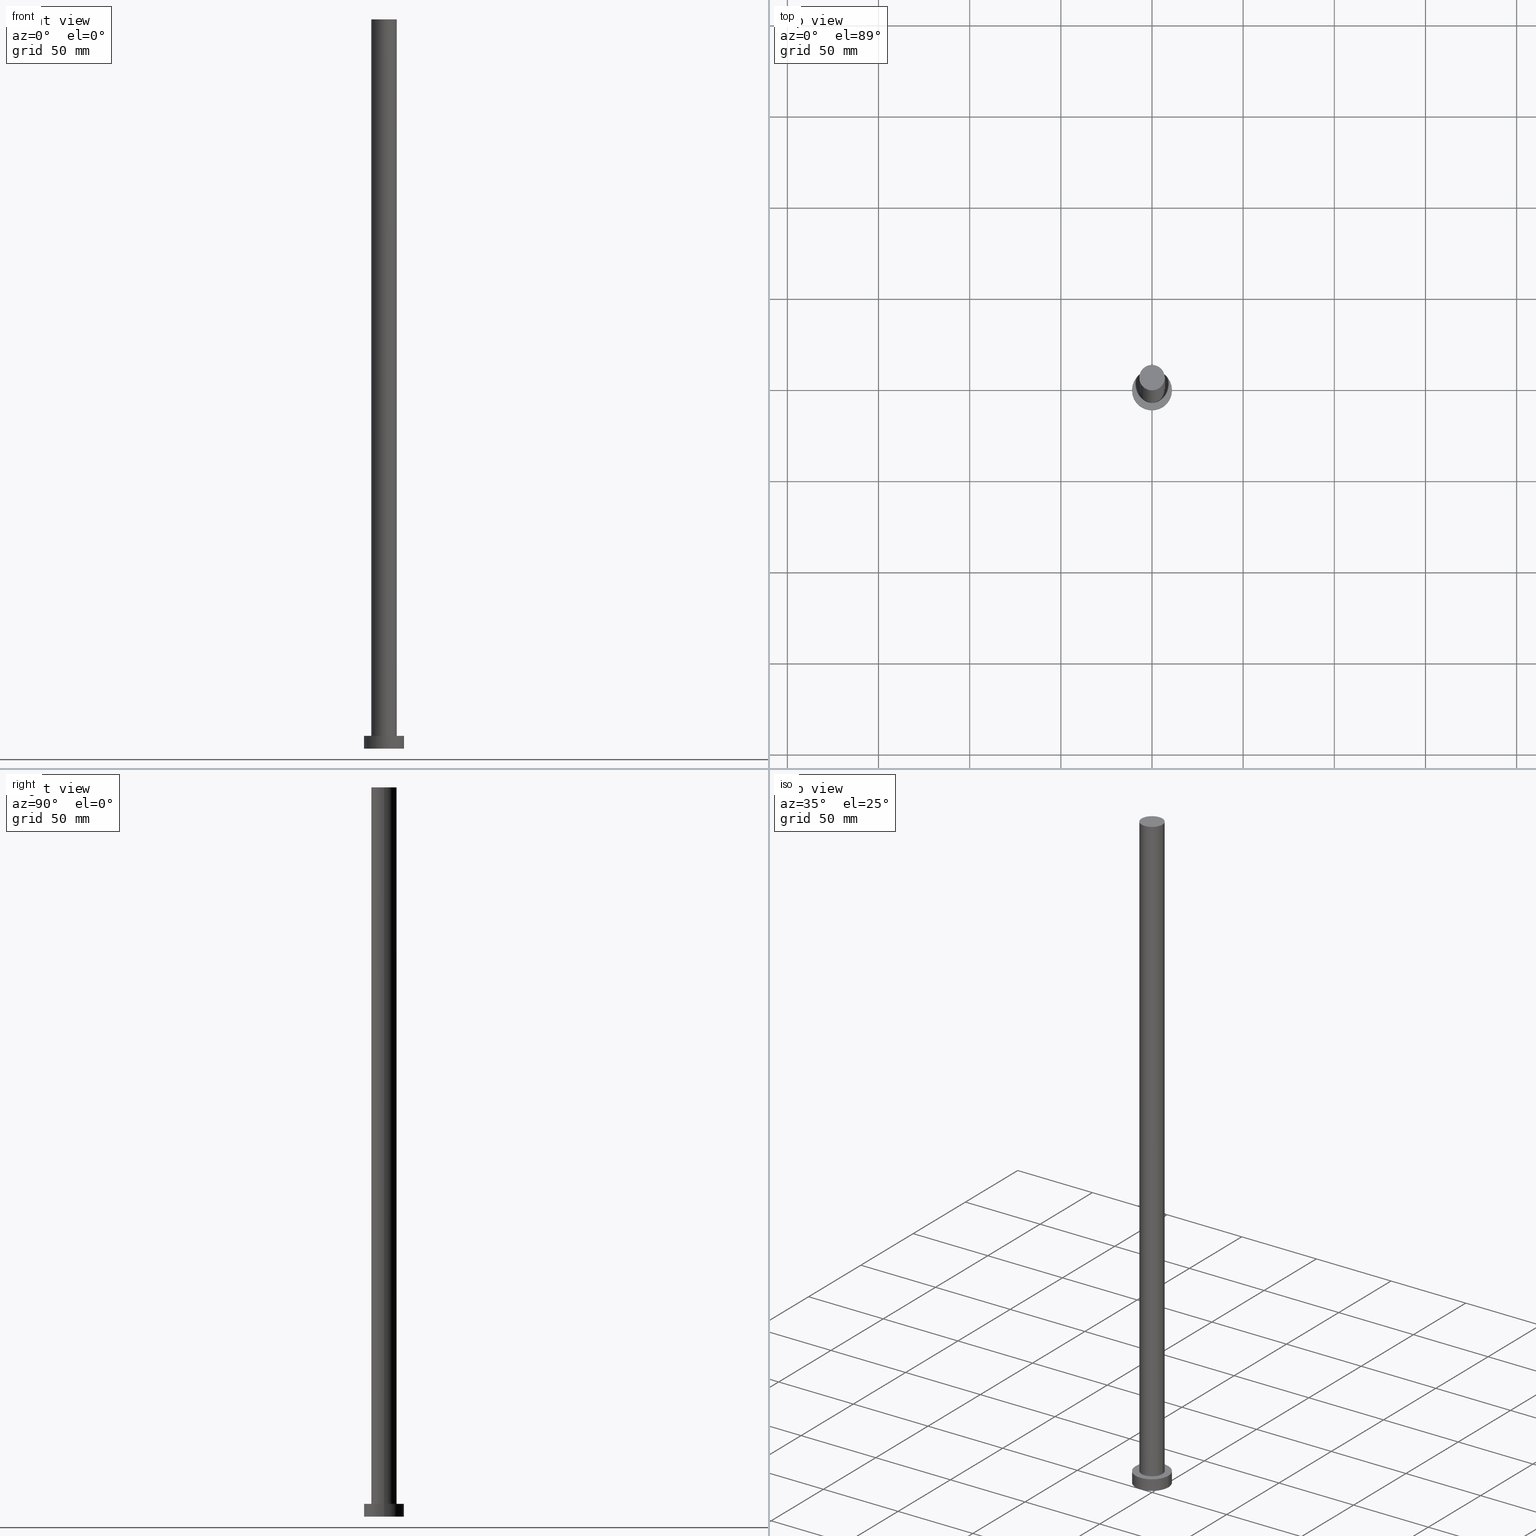
[diagram: canonical four-view strip — front | top / right | iso, engineering-drawing reading convention]
A machine part, canonical four-view strip (front | top / right | iso — engineering-drawing reading convention). The complete STEP part file that produces these views, byte-faithful:
ISO-10303-21;
HEADER;
FILE_DESCRIPTION (( 'STEP AP203' ),
    '1' );
FILE_NAME ('0eed.STEP',
    '2023-02-12T10:47:02',
    ( '' ),
    ( '' ),
    'SwSTEP 2.0',
    'SolidWorks 2019',
    '' );
FILE_SCHEMA (( 'CONFIG_CONTROL_DESIGN' ));
ENDSEC;

DATA;
#1 = CLOSED_SHELL ( 'NONE', ( #58, #105, #55, #234, #199, #146, #26 ) ) ;
#2 = DIRECTION ( 'NONE',  ( 1.000000000000000000, 0.000000000000000000, 0.000000000000000000 ) ) ;
#3 = CARTESIAN_POINT ( 'NONE',  ( -11.00000000000000000, 0.000000000000000000, 0.000000000000000000 ) ) ;
#4 = DATE_AND_TIME ( #47, #211 ) ;
#5 = CIRCLE ( 'NONE', #248, 7.000000000000000000 ) ;
#6 = APPROVAL_DATE_TIME ( #132, #203 ) ;
#7 = PERSON_AND_ORGANIZATION ( #238, #153 ) ;
#8 = VECTOR ( 'NONE', #162, 1000.000000000000000 ) ;
#9 = CC_DESIGN_DATE_AND_TIME_ASSIGNMENT ( #246, #54, ( #143 ) ) ;
#10 =( GEOMETRIC_REPRESENTATION_CONTEXT ( 3 ) GLOBAL_UNCERTAINTY_ASSIGNED_CONTEXT ( ( #134 ) ) GLOBAL_UNIT_ASSIGNED_CONTEXT ( ( #239, #204, #92 ) ) REPRESENTATION_CONTEXT ( 'NONE', 'WORKASPACE' ) );
#11 = ORIENTED_EDGE ( 'NONE', *, *, #77, .T. ) ;
#12 = ORIENTED_EDGE ( 'NONE', *, *, #189, .T. ) ;
#13 = ORIENTED_EDGE ( 'NONE', *, *, #180, .F. ) ;
#14 = EDGE_CURVE ( 'NONE', #97, #37, #17, .T. ) ;
#15 = ORIENTED_EDGE ( 'NONE', *, *, #68, .F. ) ;
#16 = CYLINDRICAL_SURFACE ( 'NONE', #166, 7.000000000000000000 ) ;
#17 = CIRCLE ( 'NONE', #53, 7.000000000000000000 ) ;
#18 = PLANE ( 'NONE',  #36 ) ;
#19 = CARTESIAN_POINT ( 'NONE',  ( 7.000000000000000000, 8.572527594031473190E-16, 400.0000000000000000 ) ) ;
#20 = DIRECTION ( 'NONE',  ( 1.000000000000000000, 0.000000000000000000, -0.000000000000000000 ) ) ;
#21 = LINE ( 'NONE', #144, #62 ) ;
#22 = COORDINATED_UNIVERSAL_TIME_OFFSET ( 1, 0, .AHEAD. ) ;
#23 = APPROVAL ( #217, 'NEUR�EN�' ) ;
#24 = DIRECTION ( 'NONE',  ( 0.000000000000000000, 0.000000000000000000, 1.000000000000000000 ) ) ;
#25 = AXIS2_PLACEMENT_3D ( 'NONE', #83, #159, #233 ) ;
#26 = ADVANCED_FACE ( 'NONE', ( #227 ), #139, .T. ) ;
#27 = CALENDAR_DATE ( 2023, 12, 2 ) ;
#28 = PERSON_AND_ORGANIZATION ( #238, #153 ) ;
#29 = APPROVAL_STATUS ( 'not_yet_approved' ) ;
#30 = APPROVAL_PERSON_ORGANIZATION ( #221, #203, #90 ) ;
#31 = EDGE_LOOP ( 'NONE', ( #172, #33, #12, #194 ) ) ;
#32 = PRODUCT_DEFINITION_SHAPE ( 'NONE', 'NONE',  #108 ) ;
#33 = ORIENTED_EDGE ( 'NONE', *, *, #14, .F. ) ;
#34 = DESIGN_CONTEXT ( 'detailed design', #82, 'design' ) ;
#35 = DIRECTION ( 'NONE',  ( 1.000000000000000000, 0.000000000000000000, -0.000000000000000000 ) ) ;
#36 = AXIS2_PLACEMENT_3D ( 'NONE', #175, #65, #20 ) ;
#37 = VERTEX_POINT ( 'NONE', #106 ) ;
#38 = DIRECTION ( 'NONE',  ( 1.000000000000000000, 0.000000000000000000, 0.000000000000000000 ) ) ;
#39 = EDGE_CURVE ( 'NONE', #122, #209, #129, .T. ) ;
#40 = CARTESIAN_POINT ( 'NONE',  ( 11.00000000000000000, 1.347111479062088405E-15, 7.000000000000000000 ) ) ;
#41 = CIRCLE ( 'NONE', #126, 11.00000000000000000 ) ;
#42 = DIRECTION ( 'NONE',  ( 1.000000000000000000, 0.000000000000000000, 0.000000000000000000 ) ) ;
#43 = DIRECTION ( 'NONE',  ( 0.000000000000000000, 0.000000000000000000, 1.000000000000000000 ) ) ;
#44 = VECTOR ( 'NONE', #124, 1000.000000000000000 ) ;
#45 = FACE_OUTER_BOUND ( 'NONE', #80, .T. ) ;
#46 = APPROVAL_ROLE ( '' ) ;
#47 = CALENDAR_DATE ( 2023, 12, 2 ) ;
#48 = MANIFOLD_SOLID_BREP ( 'P�idat vysunut�m3', #1 ) ;
#49 = PERSON_AND_ORGANIZATION_ROLE ( 'design_supplier' ) ;
#50 = APPROVAL_PERSON_ORGANIZATION ( #237, #23, #46 ) ;
#51 = PRODUCT_RELATED_PRODUCT_CATEGORY ( 'detail', '', ( #71 ) ) ;
#52 = CARTESIAN_POINT ( 'NONE',  ( 0.000000000000000000, 0.000000000000000000, 400.0000000000000000 ) ) ;
#53 = AXIS2_PLACEMENT_3D ( 'NONE', #156, #224, #158 ) ;
#54 = DATE_TIME_ROLE ( 'classification_date' ) ;
#55 = ADVANCED_FACE ( 'NONE', ( #45 ), #130, .T. ) ;
#56 = CIRCLE ( 'NONE', #87, 7.000000000000000000 ) ;
#57 = ORIENTED_EDGE ( 'NONE', *, *, #135, .F. ) ;
#58 = ADVANCED_FACE ( 'NONE', ( #61 ), #16, .T. ) ;
#59 = LOCAL_TIME ( 11, 47, 2.000000000000000000, #168 ) ;
#60 = CARTESIAN_POINT ( 'NONE',  ( -7.000000000000000000, 0.000000000000000000, 7.000000000000000000 ) ) ;
#61 = FACE_OUTER_BOUND ( 'NONE', #74, .T. ) ;
#62 = VECTOR ( 'NONE', #85, 1000.000000000000000 ) ;
#63 = CARTESIAN_POINT ( 'NONE',  ( 0.000000000000000000, 0.000000000000000000, 7.000000000000000000 ) ) ;
#64 = DIRECTION ( 'NONE',  ( 0.000000000000000000, 0.000000000000000000, 1.000000000000000000 ) ) ;
#65 = DIRECTION ( 'NONE',  ( 0.000000000000000000, 0.000000000000000000, 1.000000000000000000 ) ) ;
#66 = CIRCLE ( 'NONE', #190, 11.00000000000000000 ) ;
#67 = CARTESIAN_POINT ( 'NONE',  ( 0.000000000000000000, 0.000000000000000000, 0.000000000000000000 ) ) ;
#68 = EDGE_CURVE ( 'NONE', #122, #100, #66, .T. ) ;
#69 = LOCAL_TIME ( 11, 47, 2.000000000000000000, #206 ) ;
#70 = PERSON_AND_ORGANIZATION ( #238, #153 ) ;
#71 = PRODUCT ( '0eed', '0eed', '', ( #72 ) ) ;
#72 = MECHANICAL_CONTEXT ( 'NONE', #195, 'mechanical' ) ;
#73 = EDGE_CURVE ( 'NONE', #37, #169, #231, .T. ) ;
#74 = EDGE_LOOP ( 'NONE', ( #78, #193, #11, #79 ) ) ;
#75 = ORIENTED_EDGE ( 'NONE', *, *, #245, .T. ) ;
#76 = PERSON_AND_ORGANIZATION ( #238, #153 ) ;
#77 = EDGE_CURVE ( 'NONE', #169, #101, #56, .T. ) ;
#78 = ORIENTED_EDGE ( 'NONE', *, *, #245, .F. ) ;
#79 = ORIENTED_EDGE ( 'NONE', *, *, #189, .F. ) ;
#80 = EDGE_LOOP ( 'NONE', ( #141, #247, #120, #123 ) ) ;
#81 = CIRCLE ( 'NONE', #252, 11.00000000000000000 ) ;
#82 = APPLICATION_CONTEXT ( 'configuration controlled 3d designs of mechanical parts and assemblies' ) ;
#83 = CARTESIAN_POINT ( 'NONE',  ( 0.000000000000000000, 0.000000000000000000, 7.000000000000000000 ) ) ;
#84 = AXIS2_PLACEMENT_3D ( 'NONE', #182, #24, #116 ) ;
#85 = DIRECTION ( 'NONE',  ( -0.000000000000000000, -0.000000000000000000, -1.000000000000000000 ) ) ;
#86 = DIRECTION ( 'NONE',  ( -0.000000000000000000, -0.000000000000000000, -1.000000000000000000 ) ) ;
#87 = AXIS2_PLACEMENT_3D ( 'NONE', #161, #179, #42 ) ;
#88 = FACE_BOUND ( 'NONE', #171, .T. ) ;
#89 = LINE ( 'NONE', #128, #8 ) ;
#90 = APPROVAL_ROLE ( '' ) ;
#91 = VECTOR ( 'NONE', #107, 1000.000000000000000 ) ;
#92 =( NAMED_UNIT ( * ) SI_UNIT ( $, .STERADIAN. ) SOLID_ANGLE_UNIT ( ) );
#93 = ADVANCED_BREP_SHAPE_REPRESENTATION ( '0eed', ( #48, #119 ), #10 ) ;
#94 = APPROVAL_DATE_TIME ( #95, #23 ) ;
#95 = DATE_AND_TIME ( #27, #69 ) ;
#96 = EDGE_CURVE ( 'NONE', #209, #137, #81, .T. ) ;
#97 = VERTEX_POINT ( 'NONE', #232 ) ;
#98 = CC_DESIGN_DATE_AND_TIME_ASSIGNMENT ( #4, #164, ( #108 ) ) ;
#99 = DATE_AND_TIME ( #121, #59 ) ;
#100 = VERTEX_POINT ( 'NONE', #177 ) ;
#101 = VERTEX_POINT ( 'NONE', #60 ) ;
#102 = LOCAL_TIME ( 11, 47, 2.000000000000000000, #185 ) ;
#103 = ORIENTED_EDGE ( 'NONE', *, *, #174, .F. ) ;
#104 = DIRECTION ( 'NONE',  ( 0.000000000000000000, 0.000000000000000000, 1.000000000000000000 ) ) ;
#105 = ADVANCED_FACE ( 'NONE', ( #173 ), #149, .T. ) ;
#106 = CARTESIAN_POINT ( 'NONE',  ( 7.000000000000000000, 8.572527594031473190E-16, 400.0000000000000000 ) ) ;
#107 = DIRECTION ( 'NONE',  ( -0.000000000000000000, -0.000000000000000000, -1.000000000000000000 ) ) ;
#108 = PRODUCT_DEFINITION ( 'NEZN�M�', '', #112, #34 ) ;
#109 = CARTESIAN_POINT ( 'NONE',  ( 11.00000000000000000, 1.347111479062088405E-15, 0.000000000000000000 ) ) ;
#110 = DIRECTION ( 'NONE',  ( 1.000000000000000000, 0.000000000000000000, 0.000000000000000000 ) ) ;
#111 = PERSON_AND_ORGANIZATION_ROLE ( 'creator' ) ;
#112 = PRODUCT_DEFINITION_FORMATION_WITH_SPECIFIED_SOURCE ( 'LIBOVOLN�', '', #71, .NOT_KNOWN. ) ;
#113 = DIRECTION ( 'NONE',  ( 1.000000000000000000, 0.000000000000000000, 0.000000000000000000 ) ) ;
#114 = PLANE ( 'NONE',  #84 ) ;
#115 = AXIS2_PLACEMENT_3D ( 'NONE', #216, #212, #150 ) ;
#116 = DIRECTION ( 'NONE',  ( 1.000000000000000000, 0.000000000000000000, -0.000000000000000000 ) ) ;
#117 = PERSON_AND_ORGANIZATION_ROLE ( 'classification_officer' ) ;
#118 = EDGE_LOOP ( 'NONE', ( #157, #226 ) ) ;
#119 = AXIS2_PLACEMENT_3D ( 'NONE', #67, #181, #113 ) ;
#120 = ORIENTED_EDGE ( 'NONE', *, *, #135, .T. ) ;
#121 = CALENDAR_DATE ( 2023, 12, 2 ) ;
#122 = VERTEX_POINT ( 'NONE', #196 ) ;
#123 = ORIENTED_EDGE ( 'NONE', *, *, #180, .T. ) ;
#124 = DIRECTION ( 'NONE',  ( -0.000000000000000000, -0.000000000000000000, -1.000000000000000000 ) ) ;
#125 = DIRECTION ( 'NONE',  ( 1.000000000000000000, 0.000000000000000000, 0.000000000000000000 ) ) ;
#126 = AXIS2_PLACEMENT_3D ( 'NONE', #178, #254, #2 ) ;
#127 = CC_DESIGN_APPROVAL ( #218, ( #143 ) ) ;
#128 = CARTESIAN_POINT ( 'NONE',  ( -7.000000000000000000, 0.000000000000000000, 400.0000000000000000 ) ) ;
#129 = LINE ( 'NONE', #40, #44 ) ;
#130 = CYLINDRICAL_SURFACE ( 'NONE', #133, 11.00000000000000000 ) ;
#131 = CARTESIAN_POINT ( 'NONE',  ( 0.000000000000000000, 0.000000000000000000, 400.0000000000000000 ) ) ;
#132 = DATE_AND_TIME ( #220, #176 ) ;
#133 = AXIS2_PLACEMENT_3D ( 'NONE', #63, #213, #200 ) ;
#134 = UNCERTAINTY_MEASURE_WITH_UNIT (LENGTH_MEASURE( 1.000000000000000082E-05 ), #239, 'distance_accuracy_value', 'NONE');
#135 = EDGE_CURVE ( 'NONE', #100, #137, #21, .T. ) ;
#136 = APPROVAL_ROLE ( '' ) ;
#137 = VERTEX_POINT ( 'NONE', #3 ) ;
#138 = ORIENTED_EDGE ( 'NONE', *, *, #96, .T. ) ;
#139 = PLANE ( 'NONE',  #205 ) ;
#140 = CC_DESIGN_PERSON_AND_ORGANIZATION_ASSIGNMENT ( #219, #111, ( #108 ) ) ;
#141 = ORIENTED_EDGE ( 'NONE', *, *, #39, .F. ) ;
#142 = CIRCLE ( 'NONE', #230, 11.00000000000000000 ) ;
#143 = SECURITY_CLASSIFICATION ( '', '', #207 ) ;
#144 = CARTESIAN_POINT ( 'NONE',  ( -11.00000000000000000, 0.000000000000000000, 7.000000000000000000 ) ) ;
#145 = CYLINDRICAL_SURFACE ( 'NONE', #115, 7.000000000000000000 ) ;
#146 = ADVANCED_FACE ( 'NONE', ( #160 ), #145, .T. ) ;
#147 = CARTESIAN_POINT ( 'NONE',  ( 7.000000000000000000, 8.572527594031473190E-16, 7.000000000000000000 ) ) ;
#148 = AXIS2_PLACEMENT_3D ( 'NONE', #214, #64, #125 ) ;
#149 = CYLINDRICAL_SURFACE ( 'NONE', #25, 11.00000000000000000 ) ;
#150 = DIRECTION ( 'NONE',  ( -1.000000000000000000, 0.000000000000000000, 0.000000000000000000 ) ) ;
#151 = CC_DESIGN_PERSON_AND_ORGANIZATION_ASSIGNMENT ( #28, #117, ( #143 ) ) ;
#152 = APPROVAL_STATUS ( 'not_yet_approved' ) ;
#153 = ORGANIZATION ( 'NEUR�EN�', 'NEUR�EN�', '' ) ;
#154 = APPLICATION_PROTOCOL_DEFINITION ( 'international standard', 'config_control_design', 1994, #82 ) ;
#155 = CC_DESIGN_PERSON_AND_ORGANIZATION_ASSIGNMENT ( #183, #201, ( #71 ) ) ;
#156 = CARTESIAN_POINT ( 'NONE',  ( 0.000000000000000000, 0.000000000000000000, 400.0000000000000000 ) ) ;
#157 = ORIENTED_EDGE ( 'NONE', *, *, #222, .T. ) ;
#158 = DIRECTION ( 'NONE',  ( 1.000000000000000000, 0.000000000000000000, 0.000000000000000000 ) ) ;
#159 = DIRECTION ( 'NONE',  ( -0.000000000000000000, -0.000000000000000000, -1.000000000000000000 ) ) ;
#160 = FACE_OUTER_BOUND ( 'NONE', #31, .T. ) ;
#161 = CARTESIAN_POINT ( 'NONE',  ( 0.000000000000000000, 0.000000000000000000, 7.000000000000000000 ) ) ;
#162 = DIRECTION ( 'NONE',  ( -0.000000000000000000, -0.000000000000000000, -1.000000000000000000 ) ) ;
#163 = DIRECTION ( 'NONE',  ( 0.000000000000000000, 0.000000000000000000, 1.000000000000000000 ) ) ;
#164 = DATE_TIME_ROLE ( 'creation_date' ) ;
#165 = FACE_OUTER_BOUND ( 'NONE', #118, .T. ) ;
#166 = AXIS2_PLACEMENT_3D ( 'NONE', #197, #86, #235 ) ;
#167 = COORDINATED_UNIVERSAL_TIME_OFFSET ( 1, 0, .AHEAD. ) ;
#168 = COORDINATED_UNIVERSAL_TIME_OFFSET ( 1, 0, .AHEAD. ) ;
#169 = VERTEX_POINT ( 'NONE', #147 ) ;
#170 = APPROVAL_PERSON_ORGANIZATION ( #76, #218, #136 ) ;
#171 = EDGE_LOOP ( 'NONE', ( #103, #187 ) ) ;
#172 = ORIENTED_EDGE ( 'NONE', *, *, #73, .F. ) ;
#173 = FACE_OUTER_BOUND ( 'NONE', #244, .T. ) ;
#174 = EDGE_CURVE ( 'NONE', #101, #169, #225, .T. ) ;
#175 = CARTESIAN_POINT ( 'NONE',  ( 0.000000000000000000, 0.000000000000000000, 0.000000000000000000 ) ) ;
#176 = LOCAL_TIME ( 11, 47, 2.000000000000000000, #22 ) ;
#177 = CARTESIAN_POINT ( 'NONE',  ( -11.00000000000000000, 0.000000000000000000, 7.000000000000000000 ) ) ;
#178 = CARTESIAN_POINT ( 'NONE',  ( 0.000000000000000000, 0.000000000000000000, 7.000000000000000000 ) ) ;
#179 = DIRECTION ( 'NONE',  ( 0.000000000000000000, 0.000000000000000000, 1.000000000000000000 ) ) ;
#180 = EDGE_CURVE ( 'NONE', #137, #209, #142, .T. ) ;
#181 = DIRECTION ( 'NONE',  ( 0.000000000000000000, 0.000000000000000000, 1.000000000000000000 ) ) ;
#182 = CARTESIAN_POINT ( 'NONE',  ( 0.000000000000000000, 0.000000000000000000, 7.000000000000000000 ) ) ;
#183 = PERSON_AND_ORGANIZATION ( #238, #153 ) ;
#184 = CC_DESIGN_APPROVAL ( #203, ( #108 ) ) ;
#185 = COORDINATED_UNIVERSAL_TIME_OFFSET ( 1, 0, .AHEAD. ) ;
#186 = CC_DESIGN_PERSON_AND_ORGANIZATION_ASSIGNMENT ( #70, #49, ( #112 ) ) ;
#187 = ORIENTED_EDGE ( 'NONE', *, *, #77, .F. ) ;
#188 = ORIENTED_EDGE ( 'NONE', *, *, #14, .T. ) ;
#189 = EDGE_CURVE ( 'NONE', #97, #101, #89, .T. ) ;
#190 = AXIS2_PLACEMENT_3D ( 'NONE', #253, #163, #215 ) ;
#191 = EDGE_LOOP ( 'NONE', ( #13, #250 ) ) ;
#192 = APPROVAL_DATE_TIME ( #99, #218 ) ;
#193 = ORIENTED_EDGE ( 'NONE', *, *, #73, .T. ) ;
#194 = ORIENTED_EDGE ( 'NONE', *, *, #174, .T. ) ;
#195 = APPLICATION_CONTEXT ( 'configuration controlled 3d designs of mechanical parts and assemblies' ) ;
#196 = CARTESIAN_POINT ( 'NONE',  ( 11.00000000000000000, 1.347111479062088405E-15, 7.000000000000000000 ) ) ;
#197 = CARTESIAN_POINT ( 'NONE',  ( 0.000000000000000000, 0.000000000000000000, 400.0000000000000000 ) ) ;
#198 = FACE_OUTER_BOUND ( 'NONE', #191, .T. ) ;
#199 = ADVANCED_FACE ( 'NONE', ( #198 ), #18, .F. ) ;
#200 = DIRECTION ( 'NONE',  ( -1.000000000000000000, 0.000000000000000000, 0.000000000000000000 ) ) ;
#201 = PERSON_AND_ORGANIZATION_ROLE ( 'design_owner' ) ;
#202 = DIRECTION ( 'NONE',  ( 0.000000000000000000, 0.000000000000000000, 1.000000000000000000 ) ) ;
#203 = APPROVAL ( #152, 'NEUR�EN�' ) ;
#204 =( NAMED_UNIT ( * ) PLANE_ANGLE_UNIT ( ) SI_UNIT ( $, .RADIAN. ) );
#205 = AXIS2_PLACEMENT_3D ( 'NONE', #52, #210, #35 ) ;
#206 = COORDINATED_UNIVERSAL_TIME_OFFSET ( 1, 0, .AHEAD. ) ;
#207 = SECURITY_CLASSIFICATION_LEVEL ( 'unclassified' ) ;
#208 = CC_DESIGN_SECURITY_CLASSIFICATION ( #143, ( #112 ) ) ;
#209 = VERTEX_POINT ( 'NONE', #109 ) ;
#210 = DIRECTION ( 'NONE',  ( 0.000000000000000000, 0.000000000000000000, 1.000000000000000000 ) ) ;
#211 = LOCAL_TIME ( 11, 47, 2.000000000000000000, #167 ) ;
#212 = DIRECTION ( 'NONE',  ( -0.000000000000000000, -0.000000000000000000, -1.000000000000000000 ) ) ;
#213 = DIRECTION ( 'NONE',  ( -0.000000000000000000, -0.000000000000000000, -1.000000000000000000 ) ) ;
#214 = CARTESIAN_POINT ( 'NONE',  ( 0.000000000000000000, 0.000000000000000000, 7.000000000000000000 ) ) ;
#215 = DIRECTION ( 'NONE',  ( 1.000000000000000000, 0.000000000000000000, 0.000000000000000000 ) ) ;
#216 = CARTESIAN_POINT ( 'NONE',  ( 0.000000000000000000, 0.000000000000000000, 400.0000000000000000 ) ) ;
#217 = APPROVAL_STATUS ( 'not_yet_approved' ) ;
#218 = APPROVAL ( #29, 'NEUR�EN�' ) ;
#219 = PERSON_AND_ORGANIZATION ( #238, #153 ) ;
#220 = CALENDAR_DATE ( 2023, 12, 2 ) ;
#221 = PERSON_AND_ORGANIZATION ( #238, #153 ) ;
#222 = EDGE_CURVE ( 'NONE', #100, #122, #41, .T. ) ;
#223 = DIRECTION ( 'NONE',  ( 1.000000000000000000, 0.000000000000000000, 0.000000000000000000 ) ) ;
#224 = DIRECTION ( 'NONE',  ( 0.000000000000000000, 0.000000000000000000, 1.000000000000000000 ) ) ;
#225 = CIRCLE ( 'NONE', #148, 7.000000000000000000 ) ;
#226 = ORIENTED_EDGE ( 'NONE', *, *, #68, .T. ) ;
#227 = FACE_OUTER_BOUND ( 'NONE', #251, .T. ) ;
#228 = ORIENTED_EDGE ( 'NONE', *, *, #39, .T. ) ;
#229 = CC_DESIGN_PERSON_AND_ORGANIZATION_ASSIGNMENT ( #7, #241, ( #112 ) ) ;
#230 = AXIS2_PLACEMENT_3D ( 'NONE', #255, #43, #38 ) ;
#231 = LINE ( 'NONE', #19, #91 ) ;
#232 = CARTESIAN_POINT ( 'NONE',  ( -7.000000000000000000, 0.000000000000000000, 400.0000000000000000 ) ) ;
#233 = DIRECTION ( 'NONE',  ( -1.000000000000000000, 0.000000000000000000, 0.000000000000000000 ) ) ;
#234 = ADVANCED_FACE ( 'NONE', ( #88, #165 ), #114, .T. ) ;
#235 = DIRECTION ( 'NONE',  ( -1.000000000000000000, 0.000000000000000000, 0.000000000000000000 ) ) ;
#236 = CARTESIAN_POINT ( 'NONE',  ( 0.000000000000000000, 0.000000000000000000, 0.000000000000000000 ) ) ;
#237 = PERSON_AND_ORGANIZATION ( #238, #153 ) ;
#238 = PERSON ( 'NEUR�EN�', 'NEUR�EN�', 'NEUR�EN�', ('NEUR�EN�'), ('NEUR�EN�'), ('NEUR�EN�') ) ;
#239 =( LENGTH_UNIT ( ) NAMED_UNIT ( * ) SI_UNIT ( .MILLI., .METRE. ) );
#240 = APPLICATION_PROTOCOL_DEFINITION ( 'international standard', 'config_control_design', 1994, #195 ) ;
#241 = PERSON_AND_ORGANIZATION_ROLE ( 'creator' ) ;
#242 = CALENDAR_DATE ( 2023, 12, 2 ) ;
#243 = CC_DESIGN_APPROVAL ( #23, ( #112 ) ) ;
#244 = EDGE_LOOP ( 'NONE', ( #15, #228, #138, #57 ) ) ;
#245 = EDGE_CURVE ( 'NONE', #37, #97, #5, .T. ) ;
#246 = DATE_AND_TIME ( #242, #102 ) ;
#247 = ORIENTED_EDGE ( 'NONE', *, *, #222, .F. ) ;
#248 = AXIS2_PLACEMENT_3D ( 'NONE', #131, #202, #223 ) ;
#249 = SHAPE_DEFINITION_REPRESENTATION ( #32, #93 ) ;
#250 = ORIENTED_EDGE ( 'NONE', *, *, #96, .F. ) ;
#251 = EDGE_LOOP ( 'NONE', ( #188, #75 ) ) ;
#252 = AXIS2_PLACEMENT_3D ( 'NONE', #236, #104, #110 ) ;
#253 = CARTESIAN_POINT ( 'NONE',  ( 0.000000000000000000, 0.000000000000000000, 7.000000000000000000 ) ) ;
#254 = DIRECTION ( 'NONE',  ( 0.000000000000000000, 0.000000000000000000, 1.000000000000000000 ) ) ;
#255 = CARTESIAN_POINT ( 'NONE',  ( 0.000000000000000000, 0.000000000000000000, 0.000000000000000000 ) ) ;
ENDSEC;
END-ISO-10303-21;
